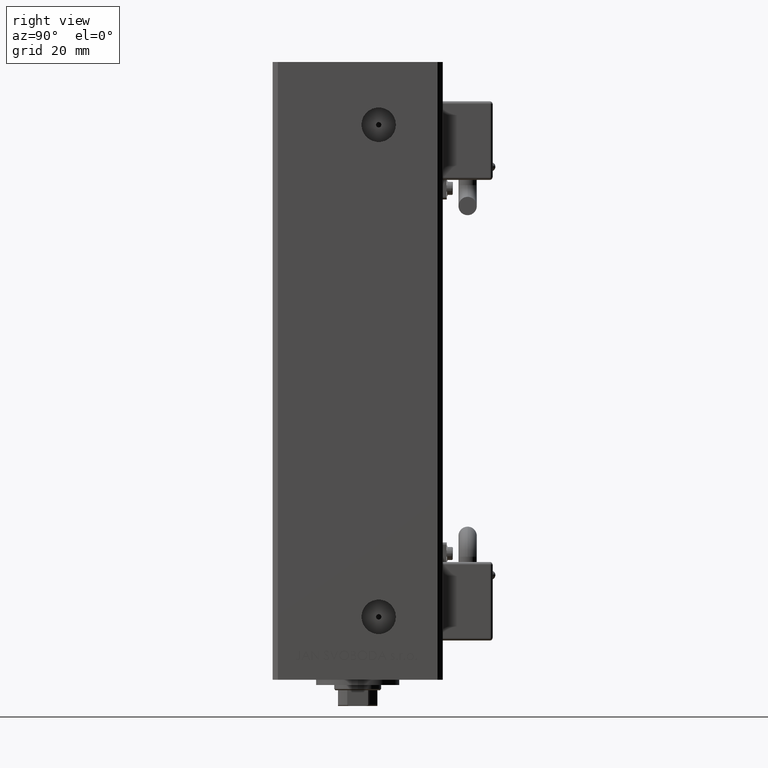
[diagram: clean part render]
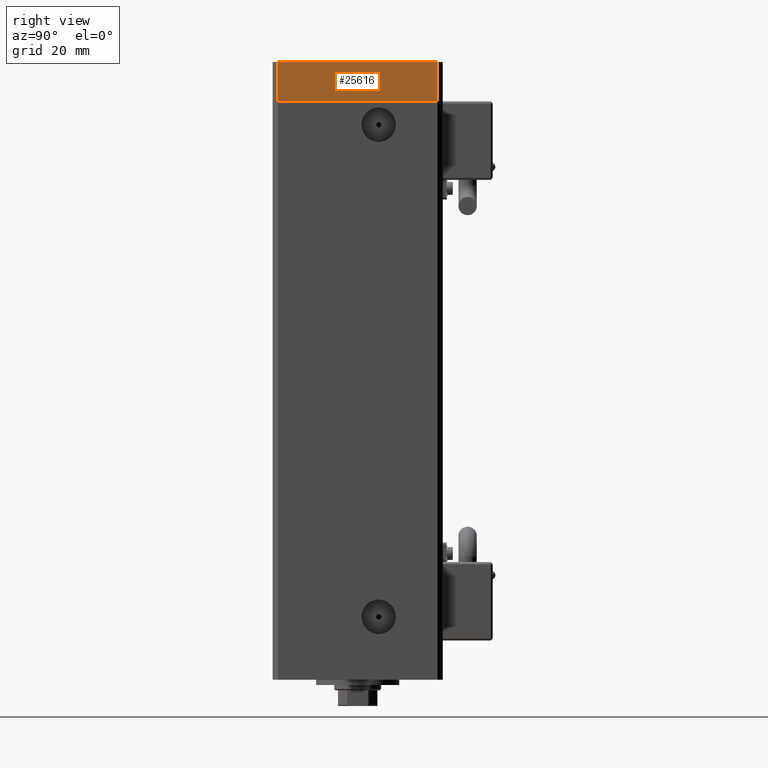
[diagram: same view with one face highlighted and labeled with its STEP entity id]
A machine part, right view. The second image highlights one B-rep face of the part: STEP entity #25616.
In plain terms, the highlighted planar face has unit normal (1, 0, 0).
Its self-contained STEP definition (entity closure, byte-faithful):
#752 = ORIENTED_EDGE ( 'NONE', *, *, #43308, .T. ) ;
#2573 = LINE ( 'NONE', #34308, #44694 ) ;
#3154 = CARTESIAN_POINT ( 'NONE',  ( 37.50000000000001421, -30.50000000000000711, -15.00000000000000000 ) ) ;
#7561 = DIRECTION ( 'NONE',  ( 1.000000000000000000, 1.478780668045803018E-15, -0.000000000000000000 ) ) ;
#7659 = EDGE_LOOP ( 'NONE', ( #9539, #29948, #752, #9777 ) ) ;
#8580 = VECTOR ( 'NONE', #37585, 1000.000000000000000 ) ;
#9539 = ORIENTED_EDGE ( 'NONE', *, *, #11983, .F. ) ;
#9777 = ORIENTED_EDGE ( 'NONE', *, *, #38869, .T. ) ;
#11366 = LINE ( 'NONE', #3154, #42889 ) ;
#11983 = EDGE_CURVE ( 'NONE', #24161, #23166, #37130, .T. ) ;
#12763 = PLANE ( 'NONE',  #43743 ) ;
#14218 = DIRECTION ( 'NONE',  ( 0.000000000000000000, 0.000000000000000000, 1.000000000000000000 ) ) ;
#14676 = CARTESIAN_POINT ( 'NONE',  ( 37.50000000000001421, -30.50000000000000711, 0.000000000000000000 ) ) ;
#16283 = LINE ( 'NONE', #36369, #8580 ) ;
#16714 = VERTEX_POINT ( 'NONE', #26690 ) ;
#19556 = DIRECTION ( 'NONE',  ( 0.000000000000000000, 0.000000000000000000, 1.000000000000000000 ) ) ;
#23166 = VERTEX_POINT ( 'NONE', #48578 ) ;
#24161 = VERTEX_POINT ( 'NONE', #14676 ) ;
#25616 = ADVANCED_FACE ( 'NONE', ( #47474 ), #12763, .T. ) ;
#26462 = EDGE_CURVE ( 'NONE', #42242, #24161, #11366, .T. ) ;
#26690 = CARTESIAN_POINT ( 'NONE',  ( 37.49999999999992184, 30.50000000000001066, -15.00000000000000000 ) ) ;
#27646 = CARTESIAN_POINT ( 'NONE',  ( 37.50000000000001421, -30.50000000000000711, -15.00000000000000000 ) ) ;
#28891 = DIRECTION ( 'NONE',  ( -1.478780668045803018E-15, 1.000000000000000000, 0.000000000000000000 ) ) ;
#28955 = CARTESIAN_POINT ( 'NONE',  ( 37.50000000000001421, -30.50000000000000711, 0.000000000000000000 ) ) ;
#29948 = ORIENTED_EDGE ( 'NONE', *, *, #26462, .F. ) ;
#34308 = CARTESIAN_POINT ( 'NONE',  ( 37.49999999999992184, 30.50000000000001066, -15.00000000000000000 ) ) ;
#35485 = CARTESIAN_POINT ( 'NONE',  ( 37.50000000000001421, -30.50000000000000711, -15.00000000000000000 ) ) ;
#36369 = CARTESIAN_POINT ( 'NONE',  ( 37.50000000000001421, -30.50000000000000711, -15.00000000000000000 ) ) ;
#37130 = LINE ( 'NONE', #28955, #45089 ) ;
#37585 = DIRECTION ( 'NONE',  ( -1.478780668045802821E-15, 1.000000000000000000, 0.000000000000000000 ) ) ;
#38869 = EDGE_CURVE ( 'NONE', #16714, #23166, #2573, .T. ) ;
#42242 = VERTEX_POINT ( 'NONE', #35485 ) ;
#42889 = VECTOR ( 'NONE', #19556, 1000.000000000000000 ) ;
#43308 = EDGE_CURVE ( 'NONE', #42242, #16714, #16283, .T. ) ;
#43743 = AXIS2_PLACEMENT_3D ( 'NONE', #27646, #7561, #28891 ) ;
#44694 = VECTOR ( 'NONE', #14218, 1000.000000000000000 ) ;
#45078 = DIRECTION ( 'NONE',  ( -1.478780668045802821E-15, 1.000000000000000000, 0.000000000000000000 ) ) ;
#45089 = VECTOR ( 'NONE', #45078, 1000.000000000000000 ) ;
#47474 = FACE_OUTER_BOUND ( 'NONE', #7659, .T. ) ;
#48578 = CARTESIAN_POINT ( 'NONE',  ( 37.49999999999992184, 30.50000000000001066, 0.000000000000000000 ) ) ;